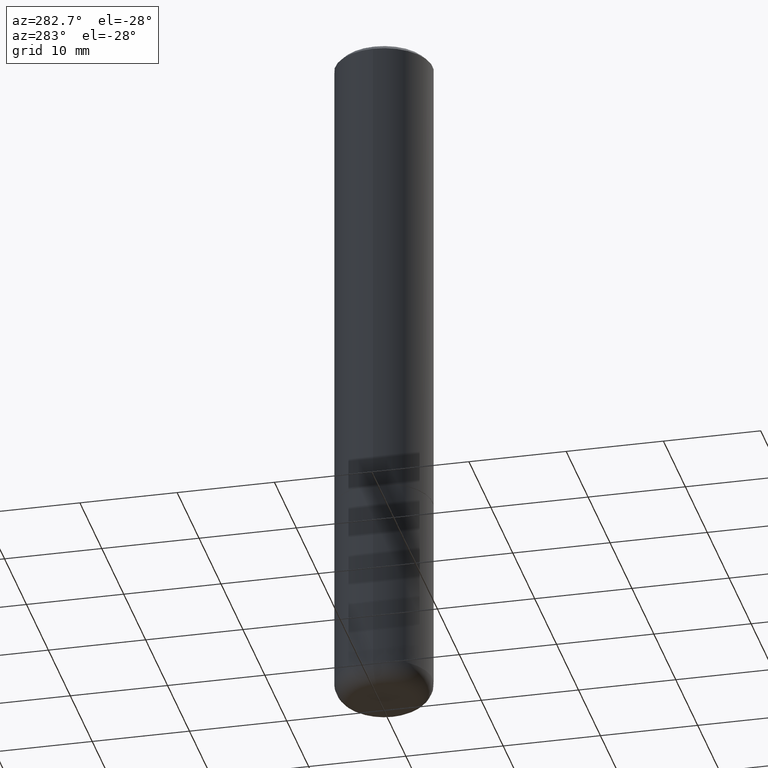
[diagram: clean part render]
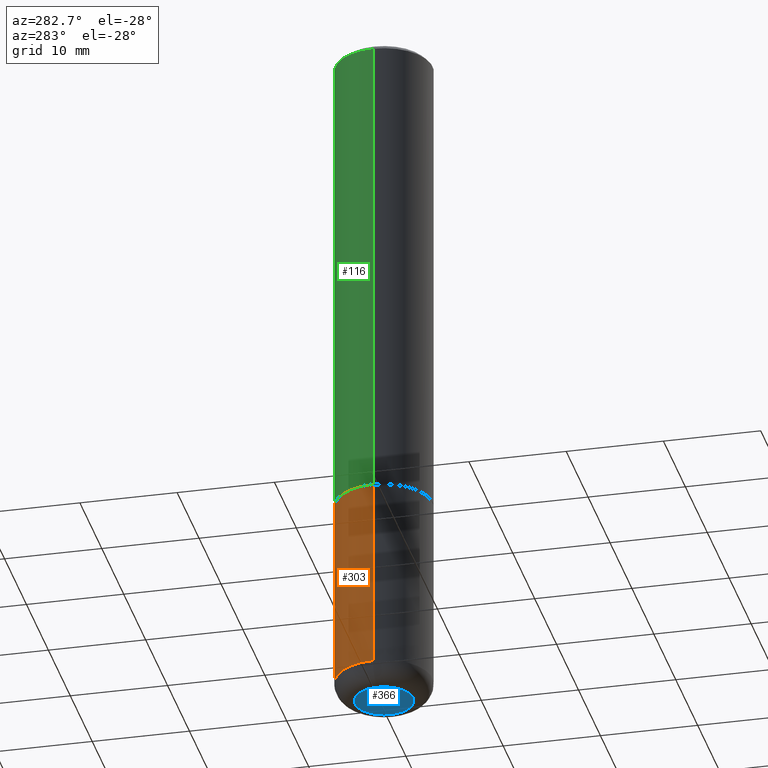
[diagram: same view with three faces highlighted in distinct colors, each labeled with its STEP entity id]
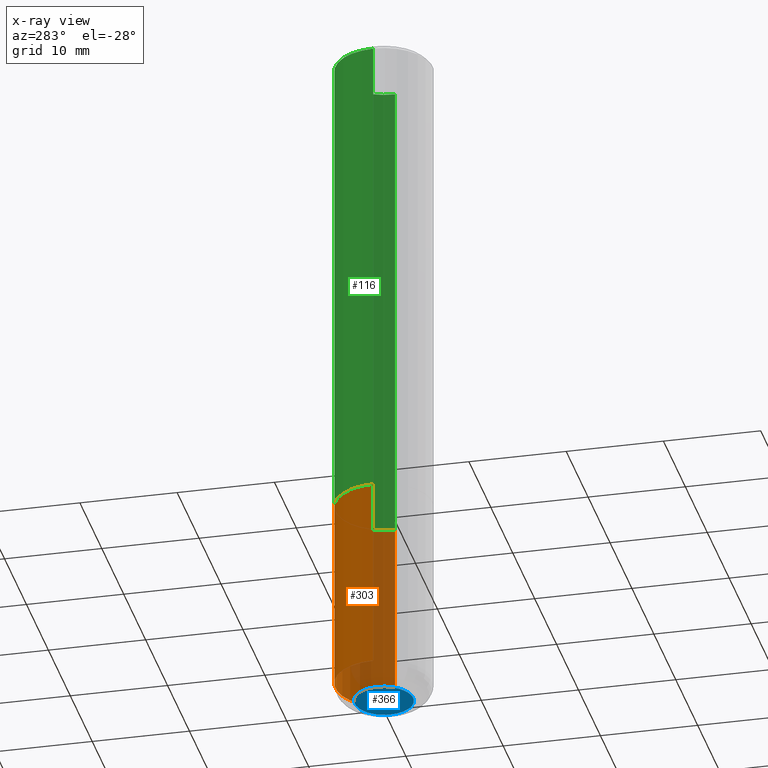
[diagram: x-ray of the same camera — body ghosted, the three highlighted faces saturated]
A machine part, auxiliary view with three faces highlighted in distinct colors.
The next image is the same camera in x-ray (body ghosted, the three faces saturated) — at least one of them is partly hidden behind the body in this view.
Their STEP definitions:

[orange] entity #303 — the highlighted cylindrical surface (partial cylindrical patch) has radius 5 mm, axis along (-0, 0, 1).
#30 = EDGE_CURVE ( 'NONE', #215, #101, #392, .T. ) ;
#43 = LINE ( 'NONE', #383, #76 ) ;
#76 = VECTOR ( 'NONE', #302, 39.37007874015748143 ) ;
#79 = EDGE_CURVE ( 'NONE', #215, #217, #43, .T. ) ;
#80 = FACE_OUTER_BOUND ( 'NONE', #244, .T. ) ;
#82 = CARTESIAN_POINT ( 'NONE',  ( -0.1968500000000000250, -6.848873843271521050E-15, -1.968500000000000139 ) ) ;
#101 = VERTEX_POINT ( 'NONE', #262 ) ;
#114 = CARTESIAN_POINT ( 'NONE',  ( 0.000000000000000000, 0.000000000000000000, 0.000000000000000000 ) ) ;
#137 = AXIS2_PLACEMENT_3D ( 'NONE', #319, #315, #312 ) ;
#142 = CARTESIAN_POINT ( 'NONE',  ( -0.1968500000000000250, 1.398703375343757393E-15, -9.682923725166783677E-30 ) ) ;
#145 = LINE ( 'NONE', #142, #184 ) ;
#146 = DIRECTION ( 'NONE',  ( -2.445468806185136597E-29, 3.491481338843145583E-15, 1.000000000000000000 ) ) ;
#172 = AXIS2_PLACEMENT_3D ( 'NONE', #228, #388, #230 ) ;
#180 = ORIENTED_EDGE ( 'NONE', *, *, #30, .T. ) ;
#182 = ORIENTED_EDGE ( 'NONE', *, *, #372, .F. ) ;
#184 = VECTOR ( 'NONE', #393, 39.37007874015748143 ) ;
#192 = CIRCLE ( 'NONE', #137, 0.1968500000000000250 ) ;
#203 = CYLINDRICAL_SURFACE ( 'NONE', #291, 0.1968500000000000250 ) ;
#215 = VERTEX_POINT ( 'NONE', #310 ) ;
#217 = VERTEX_POINT ( 'NONE', #334 ) ;
#222 = ORIENTED_EDGE ( 'NONE', *, *, #326, .T. ) ;
#228 = CARTESIAN_POINT ( 'NONE',  ( 6.739467482965618232E-29, -9.622173421717824390E-15, -2.755900000000000016 ) ) ;
#230 = DIRECTION ( 'NONE',  ( 1.000000000000000000, -6.982962677686267499E-15, 0.000000000000000000 ) ) ;
#242 = VERTEX_POINT ( 'NONE', #82 ) ;
#244 = EDGE_LOOP ( 'NONE', ( #180, #222, #182, #266 ) ) ;
#262 = CARTESIAN_POINT ( 'NONE',  ( -0.1968499999999999694, -8.223470046374067391E-15, -2.755900000000000016 ) ) ;
#266 = ORIENTED_EDGE ( 'NONE', *, *, #79, .F. ) ;
#291 = AXIS2_PLACEMENT_3D ( 'NONE', #114, #146, #309 ) ;
#302 = DIRECTION ( 'NONE',  ( -2.445468806185136877E-29, 3.491481338843145188E-15, 1.000000000000000000 ) ) ;
#303 = ADVANCED_FACE ( 'NONE', ( #80 ), #203, .T. ) ;
#309 = DIRECTION ( 'NONE',  ( 1.000000000000000000, -6.982962677686265922E-15, 4.876176775795935793E-29 ) ) ;
#310 = CARTESIAN_POINT ( 'NONE',  ( 0.1968499999999999694, -1.099676962482036600E-14, -2.755900000000000016 ) ) ;
#312 = DIRECTION ( 'NONE',  ( 1.000000000000000000, -6.982962677686267499E-15, 0.000000000000000000 ) ) ;
#315 = DIRECTION ( 'NONE',  ( -2.445468806185136597E-29, 3.491481338843145583E-15, 1.000000000000000000 ) ) ;
#319 = CARTESIAN_POINT ( 'NONE',  ( 4.813905344975441835E-29, -6.872981015512731707E-15, -1.968500000000000139 ) ) ;
#326 = EDGE_CURVE ( 'NONE', #101, #242, #145, .T. ) ;
#334 = CARTESIAN_POINT ( 'NONE',  ( 0.1968500000000000250, -8.247577218615273316E-15, -1.968500000000000139 ) ) ;
#372 = EDGE_CURVE ( 'NONE', #217, #242, #192, .T. ) ;
#383 = CARTESIAN_POINT ( 'NONE',  ( 0.1968500000000000250, -1.374596203102541608E-15, 9.598753983154300858E-30 ) ) ;
#388 = DIRECTION ( 'NONE',  ( -2.445468806185136597E-29, 3.491481338843145583E-15, 1.000000000000000000 ) ) ;
#392 = CIRCLE ( 'NONE', #172, 0.1968500000000000250 ) ;
#393 = DIRECTION ( 'NONE',  ( -2.445468806185136877E-29, 3.491481338843145188E-15, 1.000000000000000000 ) ) ;

[blue] entity #366 — the highlighted planar face has unit normal (0, -0, -1).
#8 = CIRCLE ( 'NONE', #19, 0.1181500000000000189 ) ;
#19 = AXIS2_PLACEMENT_3D ( 'NONE', #300, #138, #68 ) ;
#21 = EDGE_LOOP ( 'NONE', ( #95, #149 ) ) ;
#22 = DIRECTION ( 'NONE',  ( -1.000000000000000000, 6.982962677686265922E-15, -4.876176775795935793E-29 ) ) ;
#47 = VERTEX_POINT ( 'NONE', #390 ) ;
#52 = CARTESIAN_POINT ( 'NONE',  ( 6.931925878012387517E-29, -9.896953003084780885E-15, -2.834600000000000009 ) ) ;
#68 = DIRECTION ( 'NONE',  ( 1.000000000000000000, -6.982962677686265922E-15, 0.000000000000000000 ) ) ;
#72 = EDGE_CURVE ( 'NONE', #47, #394, #8, .T. ) ;
#86 = FACE_OUTER_BOUND ( 'NONE', #21, .T. ) ;
#95 = ORIENTED_EDGE ( 'NONE', *, *, #338, .F. ) ;
#113 = DIRECTION ( 'NONE',  ( 1.000000000000000000, -6.982962677686265922E-15, 0.000000000000000000 ) ) ;
#138 = DIRECTION ( 'NONE',  ( -2.445468806185136597E-29, 3.491481338843145583E-15, 1.000000000000000000 ) ) ;
#149 = ORIENTED_EDGE ( 'NONE', *, *, #72, .F. ) ;
#175 = DIRECTION ( 'NONE',  ( 2.438088387897960049E-29, -3.491481338843145188E-15, -1.000000000000000000 ) ) ;
#208 = PLANE ( 'NONE',  #282 ) ;
#239 = CARTESIAN_POINT ( 'NONE',  ( 6.931925878012387517E-29, -9.896953003084780885E-15, -2.834600000000000009 ) ) ;
#243 = CARTESIAN_POINT ( 'NONE',  ( 0.1181500000000000189, -1.072199004345341266E-14, -2.834600000000000009 ) ) ;
#268 = CIRCLE ( 'NONE', #337, 0.1181500000000000189 ) ;
#282 = AXIS2_PLACEMENT_3D ( 'NONE', #52, #175, #22 ) ;
#300 = CARTESIAN_POINT ( 'NONE',  ( 6.931925878012387517E-29, -9.896953003084780885E-15, -2.834600000000000009 ) ) ;
#304 = DIRECTION ( 'NONE',  ( -2.445468806185136597E-29, 3.491481338843145583E-15, 1.000000000000000000 ) ) ;
#337 = AXIS2_PLACEMENT_3D ( 'NONE', #239, #304, #113 ) ;
#338 = EDGE_CURVE ( 'NONE', #394, #47, #268, .T. ) ;
#366 = ADVANCED_FACE ( 'NONE', ( #86 ), #208, .T. ) ;
#390 = CARTESIAN_POINT ( 'NONE',  ( -0.1181500000000000189, -8.640458403579145034E-15, -2.834600000000000009 ) ) ;
#394 = VERTEX_POINT ( 'NONE', #243 ) ;

[green] entity #116 — the highlighted cylindrical surface (partial cylindrical patch) has radius 5 mm, axis along (-0, 0, 1).
#7 = CARTESIAN_POINT ( 'NONE',  ( -0.1968500000000002192, -2.070956205131615845E-15, -1.967500000000000027 ) ) ;
#14 = DIRECTION ( 'NONE',  ( -2.445468806185136877E-29, 3.491481338843145188E-15, 1.000000000000000000 ) ) ;
#26 = EDGE_CURVE ( 'NONE', #60, #158, #374, .T. ) ;
#29 = EDGE_LOOP ( 'NONE', ( #185, #83, #286, #307 ) ) ;
#34 = CARTESIAN_POINT ( 'NONE',  ( -0.1968500000000000250, 1.304766576325678705E-15, -0.02000000000000004205 ) ) ;
#38 = CARTESIAN_POINT ( 'NONE',  ( 4.811459876169256232E-29, -6.869489534173888700E-15, -1.967500000000000027 ) ) ;
#39 = EDGE_CURVE ( 'NONE', #373, #255, #40, .T. ) ;
#40 = CIRCLE ( 'NONE', #258, 0.1968500000000002192 ) ;
#48 = VECTOR ( 'NONE', #225, 39.37007874015748143 ) ;
#60 = VERTEX_POINT ( 'NONE', #163 ) ;
#73 = CARTESIAN_POINT ( 'NONE',  ( 0.1968500000000001082, -1.374596203102542397E-15, 9.598753983154305062E-30 ) ) ;
#83 = ORIENTED_EDGE ( 'NONE', *, *, #280, .T. ) ;
#97 = EDGE_CURVE ( 'NONE', #373, #60, #102, .T. ) ;
#99 = AXIS2_PLACEMENT_3D ( 'NONE', #352, #330, #167 ) ;
#102 = LINE ( 'NONE', #73, #48 ) ;
#110 = DIRECTION ( 'NONE',  ( -2.445468806185136597E-29, 3.491481338843145583E-15, 1.000000000000000000 ) ) ;
#116 = ADVANCED_FACE ( 'NONE', ( #196 ), #257, .T. ) ;
#133 = DIRECTION ( 'NONE',  ( -2.445468806185136597E-29, 3.491481338843145583E-15, 1.000000000000000000 ) ) ;
#158 = VERTEX_POINT ( 'NONE', #34 ) ;
#161 = DIRECTION ( 'NONE',  ( 1.000000000000000000, -6.982962677686265922E-15, 0.000000000000000000 ) ) ;
#163 = CARTESIAN_POINT ( 'NONE',  ( 0.1968500000000000250, -1.420318657638189122E-15, -0.02000000000000004205 ) ) ;
#167 = DIRECTION ( 'NONE',  ( 1.000000000000000000, -6.982962677686266711E-15, 4.876176775795935793E-29 ) ) ;
#173 = CARTESIAN_POINT ( 'NONE',  ( -0.1968500000000001082, 1.398703375343757985E-15, -9.682923725166787881E-30 ) ) ;
#178 = VECTOR ( 'NONE', #14, 39.37007874015748143 ) ;
#185 = ORIENTED_EDGE ( 'NONE', *, *, #39, .T. ) ;
#187 = CARTESIAN_POINT ( 'NONE',  ( 0.1968500000000002192, -8.244085737276431886E-15, -1.967500000000000027 ) ) ;
#196 = FACE_OUTER_BOUND ( 'NONE', #29, .T. ) ;
#225 = DIRECTION ( 'NONE',  ( -2.445468806185136877E-29, 3.491481338843145188E-15, 1.000000000000000000 ) ) ;
#241 = LINE ( 'NONE', #173, #178 ) ;
#255 = VERTEX_POINT ( 'NONE', #7 ) ;
#257 = CYLINDRICAL_SURFACE ( 'NONE', #99, 0.1968500000000001082 ) ;
#258 = AXIS2_PLACEMENT_3D ( 'NONE', #38, #110, #161 ) ;
#280 = EDGE_CURVE ( 'NONE', #255, #158, #241, .T. ) ;
#286 = ORIENTED_EDGE ( 'NONE', *, *, #26, .F. ) ;
#299 = AXIS2_PLACEMENT_3D ( 'NONE', #378, #133, #323 ) ;
#307 = ORIENTED_EDGE ( 'NONE', *, *, #97, .F. ) ;
#323 = DIRECTION ( 'NONE',  ( 1.000000000000000000, -6.982962677686265922E-15, 0.000000000000000000 ) ) ;
#330 = DIRECTION ( 'NONE',  ( -2.445468806185136597E-29, 3.491481338843145583E-15, 1.000000000000000000 ) ) ;
#352 = CARTESIAN_POINT ( 'NONE',  ( 0.000000000000000000, 0.000000000000000000, 0.000000000000000000 ) ) ;
#373 = VERTEX_POINT ( 'NONE', #187 ) ;
#374 = CIRCLE ( 'NONE', #299, 0.1968500000000000250 ) ;
#378 = CARTESIAN_POINT ( 'NONE',  ( 4.890937612370283668E-31, -6.982962677686305168E-17, -0.02000000000000004205 ) ) ;